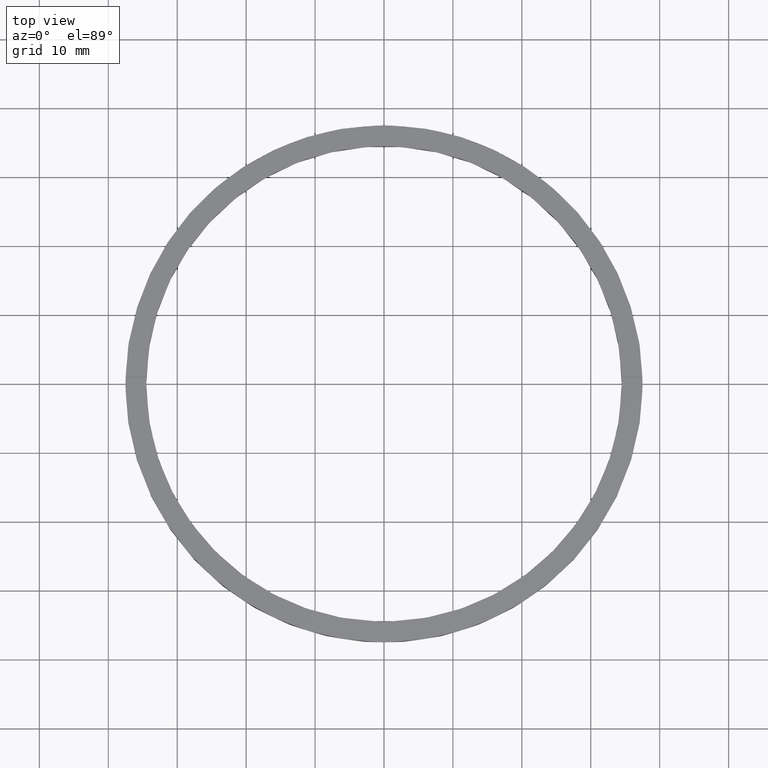
[diagram: clean part render]
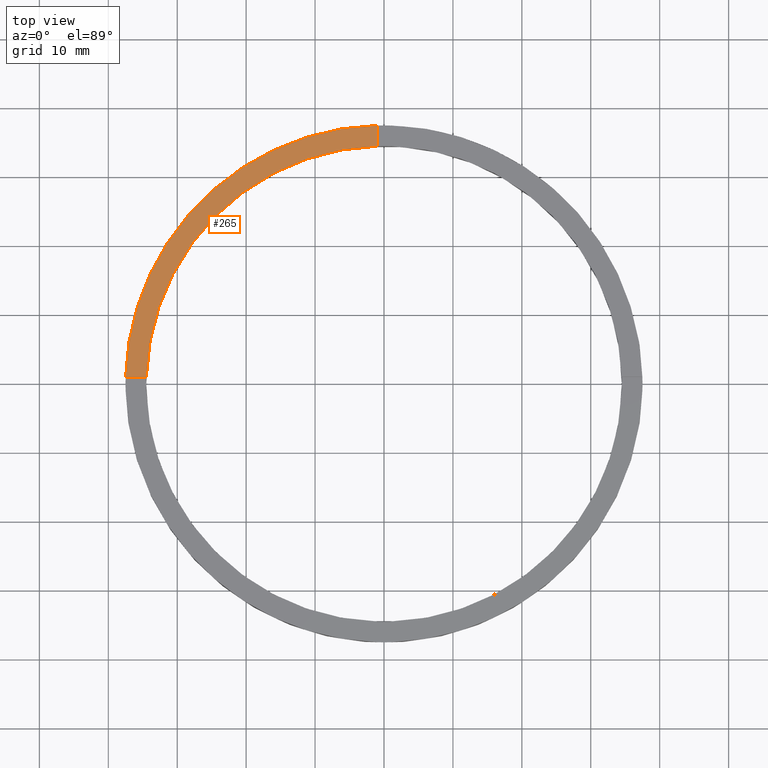
[diagram: same view with one face highlighted and labeled with its STEP entity id]
A machine part, top view. The second image highlights one B-rep face of the part: STEP entity #265.
In plain terms, the highlighted planar face has unit normal (0, 0, 1).
Its self-contained STEP definition (entity closure, byte-faithful):
#54 = LINE ( 'NONE', #561, #576 ) ;
#84 = ORIENTED_EDGE ( 'NONE', *, *, #280, .T. ) ;
#109 = ORIENTED_EDGE ( 'NONE', *, *, #721, .F. ) ;
#110 = CARTESIAN_POINT ( 'NONE',  ( 0.000000000000000000, 0.000000000000000000, 3.500000000000000000 ) ) ;
#111 = ORIENTED_EDGE ( 'NONE', *, *, #191, .F. ) ;
#120 = CARTESIAN_POINT ( 'NONE',  ( 0.000000000000000000, 0.000000000000000000, 3.500000000000000000 ) ) ;
#125 = PLANE ( 'NONE',  #566 ) ;
#171 = FACE_OUTER_BOUND ( 'NONE', #194, .T. ) ;
#174 = VECTOR ( 'NONE', #252, 1000.000000000000000 ) ;
#179 = DIRECTION ( 'NONE',  ( 0.000000000000000000, 0.000000000000000000, 1.000000000000000000 ) ) ;
#183 = VERTEX_POINT ( 'NONE', #481 ) ;
#191 = EDGE_CURVE ( 'NONE', #480, #183, #695, .T. ) ;
#194 = EDGE_LOOP ( 'NONE', ( #358, #84, #109, #111 ) ) ;
#236 = EDGE_CURVE ( 'NONE', #391, #480, #697, .T. ) ;
#240 = DIRECTION ( 'NONE',  ( 0.000000000000000000, 0.000000000000000000, 1.000000000000000000 ) ) ;
#252 = DIRECTION ( 'NONE',  ( -0.000000000000000000, -1.000000000000000000, -0.000000000000000000 ) ) ;
#265 = ADVANCED_FACE ( 'NONE', ( #171 ), #125, .T. ) ;
#280 = EDGE_CURVE ( 'NONE', #391, #652, #700, .T. ) ;
#309 = DIRECTION ( 'NONE',  ( 0.000000000000000000, 0.000000000000000000, 1.000000000000000000 ) ) ;
#342 = DIRECTION ( 'NONE',  ( 1.000000000000000000, 0.000000000000000000, -0.000000000000000000 ) ) ;
#351 = DIRECTION ( 'NONE',  ( 1.000000000000000000, 0.000000000000000000, 0.000000000000000000 ) ) ;
#358 = ORIENTED_EDGE ( 'NONE', *, *, #236, .F. ) ;
#391 = VERTEX_POINT ( 'NONE', #398 ) ;
#398 = CARTESIAN_POINT ( 'NONE',  ( -1.000000000000025313, 37.48666429545312440, 3.500000000000000000 ) ) ;
#448 = CARTESIAN_POINT ( 'NONE',  ( -37.48666429545313150, 0.9999999999999724665, 3.500000000000000000 ) ) ;
#480 = VERTEX_POINT ( 'NONE', #689 ) ;
#481 = CARTESIAN_POINT ( 'NONE',  ( -34.48550420104076153, 0.9999999999999731326, 3.500000000000000000 ) ) ;
#483 = DIRECTION ( 'NONE',  ( 1.000000000000000000, 0.000000000000000000, 0.000000000000000000 ) ) ;
#518 = CARTESIAN_POINT ( 'NONE',  ( 0.000000000000000000, 0.000000000000000000, 3.500000000000000000 ) ) ;
#561 = CARTESIAN_POINT ( 'NONE',  ( -27.50000000000019185, 0.9999999999999744649, 3.500000000000000000 ) ) ;
#566 = AXIS2_PLACEMENT_3D ( 'NONE', #120, #309, #342 ) ;
#576 = VECTOR ( 'NONE', #639, 1000.000000000000000 ) ;
#639 = DIRECTION ( 'NONE',  ( -1.000000000000000000, -1.951563910473907735E-16, 0.000000000000000000 ) ) ;
#652 = VERTEX_POINT ( 'NONE', #448 ) ;
#678 = CARTESIAN_POINT ( 'NONE',  ( -1.000000000000025313, 27.50000000000000355, 3.500000000000000000 ) ) ;
#689 = CARTESIAN_POINT ( 'NONE',  ( -1.000000000000025313, 34.48550420104075442, 3.500000000000000000 ) ) ;
#695 = CIRCLE ( 'NONE', #737, 34.49999999999999289 ) ;
#697 = LINE ( 'NONE', #678, #174 ) ;
#700 = CIRCLE ( 'NONE', #703, 37.50000000000000711 ) ;
#703 = AXIS2_PLACEMENT_3D ( 'NONE', #518, #240, #483 ) ;
#721 = EDGE_CURVE ( 'NONE', #183, #652, #54, .T. ) ;
#737 = AXIS2_PLACEMENT_3D ( 'NONE', #110, #179, #351 ) ;